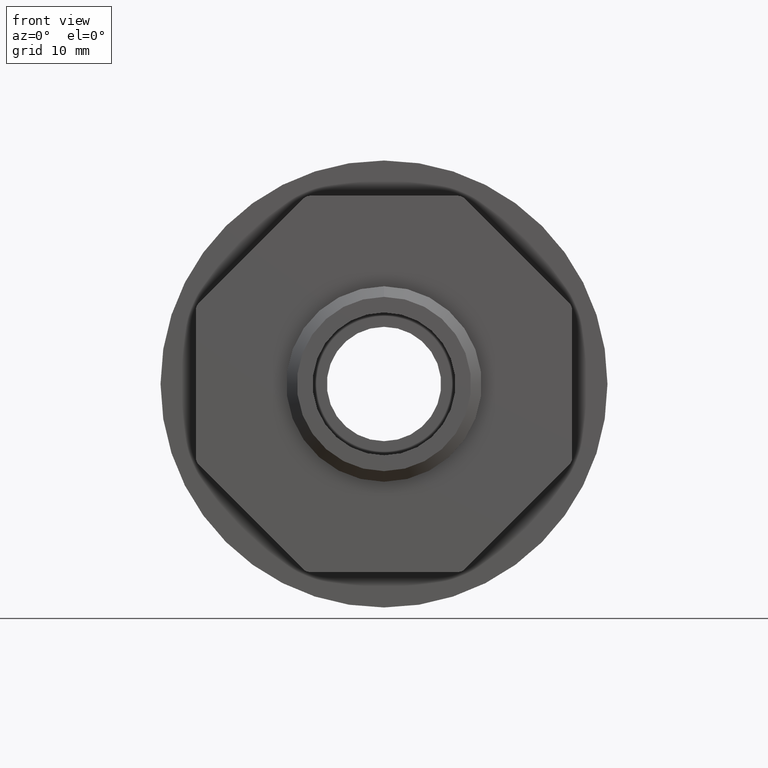
[diagram: clean part render]
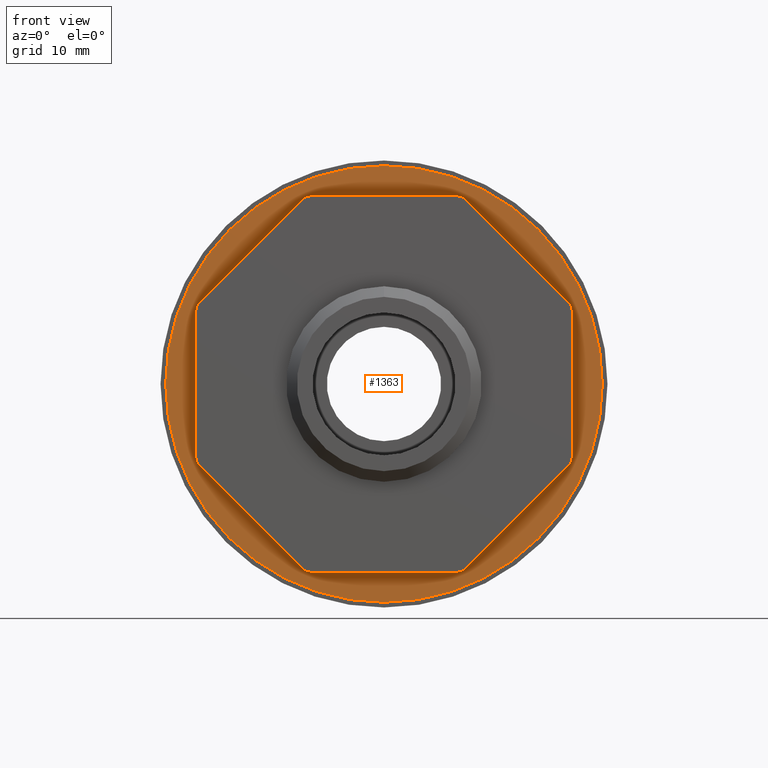
[diagram: same view with one face highlighted and labeled with its STEP entity id]
A machine part, front view. The second image highlights one B-rep face of the part: STEP entity #1363.
In plain terms, the highlighted planar face has unit normal (0, -1, 0).
Its self-contained STEP definition (entity closure, byte-faithful):
#983 = ORIENTED_EDGE ( 'NONE', *, *, #1273, .F. ) ;
#991 = ORIENTED_EDGE ( 'NONE', *, *, #1320, .F. ) ;
#1185 = EDGE_LOOP ( 'NONE', ( #991, #983 ) ) ;
#1226 = VERTEX_POINT ( 'NONE', #2716 ) ;
#1227 = VERTEX_POINT ( 'NONE', #2717 ) ;
#1273 = EDGE_CURVE ( 'NONE', #1227, #1226, #2852, .T. ) ;
#1320 = EDGE_CURVE ( 'NONE', #1226, #1227, #2821, .T. ) ;
#1352 = EDGE_CURVE ( 'NONE', #1360, #1353, #2841, .T. ) ;
#1353 = VERTEX_POINT ( 'NONE', #2837 ) ;
#1355 = EDGE_CURVE ( 'NONE', #1360, #1436, #2836, .T. ) ;
#1358 = ORIENTED_EDGE ( 'NONE', *, *, #1355, .F. ) ;
#1360 = VERTEX_POINT ( 'NONE', #2779 ) ;
#1361 = VERTEX_POINT ( 'NONE', #2778 ) ;
#1363 = ADVANCED_FACE ( 'NONE', ( #2777, #2776 ), #2775, .T. ) ;
#1402 = EDGE_LOOP ( 'NONE', ( #1408, #1432, #1358, #1670, #1580, #1687, #1688, #1610, #1608, #1553, #1556, #1607, #1659, #1597, #1595, #1645 ) ) ;
#1404 = VERTEX_POINT ( 'NONE', #2774 ) ;
#1408 = ORIENTED_EDGE ( 'NONE', *, *, #1409, .F. ) ;
#1409 = EDGE_CURVE ( 'NONE', #1404, #1410, #2817, .T. ) ;
#1410 = VERTEX_POINT ( 'NONE', #2813 ) ;
#1432 = ORIENTED_EDGE ( 'NONE', *, *, #1434, .T. ) ;
#1434 = EDGE_CURVE ( 'NONE', #1404, #1436, #2812, .T. ) ;
#1436 = VERTEX_POINT ( 'NONE', #2849 ) ;
#1548 = VERTEX_POINT ( 'NONE', #2740 ) ;
#1550 = EDGE_CURVE ( 'NONE', #1624, #1548, #2738, .T. ) ;
#1552 = EDGE_CURVE ( 'NONE', #1609, #1548, #2739, .T. ) ;
#1553 = ORIENTED_EDGE ( 'NONE', *, *, #1554, .T. ) ;
#1554 = EDGE_CURVE ( 'NONE', #1609, #1555, #2787, .T. ) ;
#1555 = VERTEX_POINT ( 'NONE', #2782 ) ;
#1556 = ORIENTED_EDGE ( 'NONE', *, *, #1602, .F. ) ;
#1580 = ORIENTED_EDGE ( 'NONE', *, *, #1586, .F. ) ;
#1581 = VERTEX_POINT ( 'NONE', #2781 ) ;
#1583 = EDGE_CURVE ( 'NONE', #1581, #1361, #2922, .T. ) ;
#1586 = EDGE_CURVE ( 'NONE', #1581, #1353, #2956, .T. ) ;
#1595 = ORIENTED_EDGE ( 'NONE', *, *, #1596, .F. ) ;
#1596 = EDGE_CURVE ( 'NONE', #1730, #1600, #2936, .T. ) ;
#1597 = ORIENTED_EDGE ( 'NONE', *, *, #1655, .T. ) ;
#1598 = VERTEX_POINT ( 'NONE', #2915 ) ;
#1600 = VERTEX_POINT ( 'NONE', #2920 ) ;
#1602 = EDGE_CURVE ( 'NONE', #1604, #1555, #2961, .T. ) ;
#1604 = VERTEX_POINT ( 'NONE', #2962 ) ;
#1607 = ORIENTED_EDGE ( 'NONE', *, *, #1662, .T. ) ;
#1608 = ORIENTED_EDGE ( 'NONE', *, *, #1552, .F. ) ;
#1609 = VERTEX_POINT ( 'NONE', #2945 ) ;
#1610 = ORIENTED_EDGE ( 'NONE', *, *, #1550, .T. ) ;
#1624 = VERTEX_POINT ( 'NONE', #2995 ) ;
#1644 = EDGE_CURVE ( 'NONE', #1624, #1361, #2959, .T. ) ;
#1645 = ORIENTED_EDGE ( 'NONE', *, *, #1646, .T. ) ;
#1646 = EDGE_CURVE ( 'NONE', #1730, #1410, #2960, .T. ) ;
#1654 = EDGE_CURVE ( 'NONE', #1598, #1657, #2996, .T. ) ;
#1655 = EDGE_CURVE ( 'NONE', #1598, #1600, #2927, .T. ) ;
#1657 = VERTEX_POINT ( 'NONE', #2923 ) ;
#1659 = ORIENTED_EDGE ( 'NONE', *, *, #1654, .F. ) ;
#1662 = EDGE_CURVE ( 'NONE', #1604, #1657, #2892, .T. ) ;
#1670 = ORIENTED_EDGE ( 'NONE', *, *, #1352, .T. ) ;
#1687 = ORIENTED_EDGE ( 'NONE', *, *, #1583, .T. ) ;
#1688 = ORIENTED_EDGE ( 'NONE', *, *, #1644, .F. ) ;
#1730 = VERTEX_POINT ( 'NONE', #2905 ) ;
#2716 = CARTESIAN_POINT ( 'NONE',  ( 0.0000000000000000000, 0.5100000000000000100, 1.049999999999999800 ) ) ;
#2717 = CARTESIAN_POINT ( 'NONE',  ( 1.285879139104720500E-016, 0.5100000000000000100, -1.049999999999999800 ) ) ;
#2734 = DIRECTION ( 'NONE',  ( 0.0000000000000000000, 0.0000000000000000000, -1.000000000000000000 ) ) ;
#2735 = DIRECTION ( 'NONE',  ( -0.0000000000000000000, 1.000000000000000000, -0.0000000000000000000 ) ) ;
#2736 = CARTESIAN_POINT ( 'NONE',  ( -0.8549999999999996500, 0.5100000000000000100, -0.3541525958289963900 ) ) ;
#2737 = AXIS2_PLACEMENT_3D ( 'NONE', #2736, #2735, #2734 ) ;
#2738 = CIRCLE ( 'NONE', #2737, 0.05000000000000001000 ) ;
#2739 = LINE ( 'NONE', #2790, #2789 ) ;
#2740 = CARTESIAN_POINT ( 'NONE',  ( -0.9049999999999995800, 0.5100000000000000100, -0.3541525958289963900 ) ) ;
#2770 = DIRECTION ( 'NONE',  ( 0.0000000000000000000, -0.0000000000000000000, -1.000000000000000000 ) ) ;
#2771 = DIRECTION ( 'NONE',  ( 0.0000000000000000000, -1.000000000000000000, 0.0000000000000000000 ) ) ;
#2772 = CARTESIAN_POINT ( 'NONE',  ( 0.0000000000000000000, 0.5100000000000000100, 0.0000000000000000000 ) ) ;
#2773 = AXIS2_PLACEMENT_3D ( 'NONE', #2772, #2771, #2770 ) ;
#2774 = CARTESIAN_POINT ( 'NONE',  ( 0.9049999999999998000, 0.5100000000000000100, -0.3541525958289963900 ) ) ;
#2775 = PLANE ( 'NONE',  #2773 ) ;
#2776 = FACE_BOUND ( 'NONE', #1402, .T. ) ;
#2777 = FACE_OUTER_BOUND ( 'NONE', #1185, .T. ) ;
#2778 = CARTESIAN_POINT ( 'NONE',  ( -0.3895079348883229700, 0.5100000000000000100, -0.8903553390593274000 ) ) ;
#2779 = CARTESIAN_POINT ( 'NONE',  ( 0.3895079348883237500, 0.5100000000000000100, -0.8903553390593274000 ) ) ;
#2780 = DIRECTION ( 'NONE',  ( 0.7071067811865473500, 0.0000000000000000000, 0.7071067811865476800 ) ) ;
#2781 = CARTESIAN_POINT ( 'NONE',  ( -0.3541525958289956600, 0.5100000000000000100, -0.9050000000000000300 ) ) ;
#2782 = CARTESIAN_POINT ( 'NONE',  ( -0.8903553390593271800, 0.5100000000000000100, 0.3895079348883231400 ) ) ;
#2783 = DIRECTION ( 'NONE',  ( -2.731847993664262800E-015, 0.0000000000000000000, -1.000000000000000000 ) ) ;
#2784 = DIRECTION ( 'NONE',  ( -0.0000000000000000000, 1.000000000000000000, -0.0000000000000000000 ) ) ;
#2785 = CARTESIAN_POINT ( 'NONE',  ( -0.8549999999999997600, 0.5100000000000000100, 0.3541525958289958900 ) ) ;
#2786 = AXIS2_PLACEMENT_3D ( 'NONE', #2785, #2784, #2783 ) ;
#2787 = CIRCLE ( 'NONE', #2786, 0.05000000000000001000 ) ;
#2788 = DIRECTION ( 'NONE',  ( 1.821896264266850500E-016, 0.0000000000000000000, -1.000000000000000000 ) ) ;
#2789 = VECTOR ( 'NONE', #2788, 39.37007874015748100 ) ;
#2790 = CARTESIAN_POINT ( 'NONE',  ( -0.9049999999999998000, 0.5100000000000000100, 0.3748632739476505100 ) ) ;
#2793 = CARTESIAN_POINT ( 'NONE',  ( 0.0000000000000000000, 0.5100000000000000100, 0.0000000000000000000 ) ) ;
#2796 = DIRECTION ( 'NONE',  ( 0.0000000000000000000, 0.0000000000000000000, -1.000000000000000000 ) ) ;
#2797 = DIRECTION ( 'NONE',  ( -0.0000000000000000000, 1.000000000000000000, -0.0000000000000000000 ) ) ;
#2798 = AXIS2_PLACEMENT_3D ( 'NONE', #2863, #2797, #2796 ) ;
#2809 = DIRECTION ( 'NONE',  ( -0.0000000000000000000, 1.000000000000000000, -0.0000000000000000000 ) ) ;
#2810 = CARTESIAN_POINT ( 'NONE',  ( 0.8549999999999997600, 0.5100000000000000100, -0.3541525958289963900 ) ) ;
#2811 = AXIS2_PLACEMENT_3D ( 'NONE', #2810, #2809, #2850 ) ;
#2812 = CIRCLE ( 'NONE', #2811, 0.05000000000000001000 ) ;
#2813 = CARTESIAN_POINT ( 'NONE',  ( 0.9049999999999998000, 0.5100000000000000100, 0.3541525958289966600 ) ) ;
#2814 = DIRECTION ( 'NONE',  ( 0.0000000000000000000, 0.0000000000000000000, 1.000000000000000000 ) ) ;
#2815 = VECTOR ( 'NONE', #2814, 39.37007874015748100 ) ;
#2816 = CARTESIAN_POINT ( 'NONE',  ( 0.9049999999999998000, 0.5100000000000000100, -0.3748632739476510700 ) ) ;
#2817 = LINE ( 'NONE', #2816, #2815 ) ;
#2818 = DIRECTION ( 'NONE',  ( 0.0000000000000000000, 0.0000000000000000000, -1.000000000000000000 ) ) ;
#2819 = DIRECTION ( 'NONE',  ( -0.0000000000000000000, 1.000000000000000000, -0.0000000000000000000 ) ) ;
#2820 = AXIS2_PLACEMENT_3D ( 'NONE', #2793, #2819, #2818 ) ;
#2821 = CIRCLE ( 'NONE', #2820, 1.049999999999999800 ) ;
#2834 = VECTOR ( 'NONE', #2780, 39.37007874015748100 ) ;
#2835 = CARTESIAN_POINT ( 'NONE',  ( 0.3748632739476510700, 0.5100000000000000100, -0.9050000000000000300 ) ) ;
#2836 = LINE ( 'NONE', #2835, #2834 ) ;
#2837 = CARTESIAN_POINT ( 'NONE',  ( 0.3541525958289963300, 0.5100000000000000100, -0.9050000000000000300 ) ) ;
#2838 = DIRECTION ( 'NONE',  ( 0.0000000000000000000, 0.0000000000000000000, -1.000000000000000000 ) ) ;
#2839 = DIRECTION ( 'NONE',  ( -0.0000000000000000000, 1.000000000000000000, -0.0000000000000000000 ) ) ;
#2840 = AXIS2_PLACEMENT_3D ( 'NONE', #2867, #2839, #2838 ) ;
#2841 = CIRCLE ( 'NONE', #2840, 0.05000000000000001000 ) ;
#2849 = CARTESIAN_POINT ( 'NONE',  ( 0.8903553390593271800, 0.5100000000000000100, -0.3895079348883236400 ) ) ;
#2850 = DIRECTION ( 'NONE',  ( -5.463695987328525600E-015, 0.0000000000000000000, -1.000000000000000000 ) ) ;
#2852 = CIRCLE ( 'NONE', #2798, 1.049999999999999800 ) ;
#2863 = CARTESIAN_POINT ( 'NONE',  ( 0.0000000000000000000, 0.5100000000000000100, 0.0000000000000000000 ) ) ;
#2867 = CARTESIAN_POINT ( 'NONE',  ( 0.3541525958289963300, 0.5100000000000000100, -0.8549999999999999800 ) ) ;
#2888 = DIRECTION ( 'NONE',  ( -4.097771990496393800E-015, 0.0000000000000000000, -1.000000000000000000 ) ) ;
#2889 = DIRECTION ( 'NONE',  ( -0.0000000000000000000, 1.000000000000000000, -0.0000000000000000000 ) ) ;
#2890 = CARTESIAN_POINT ( 'NONE',  ( -0.3541525958289962700, 0.5100000000000000100, 0.8549999999999997600 ) ) ;
#2891 = AXIS2_PLACEMENT_3D ( 'NONE', #2890, #2889, #2888 ) ;
#2892 = CIRCLE ( 'NONE', #2891, 0.05000000000000001000 ) ;
#2894 = AXIS2_PLACEMENT_3D ( 'NONE', #2957, #2930, #2914 ) ;
#2905 = CARTESIAN_POINT ( 'NONE',  ( 0.8903553390593270700, 0.5100000000000000100, 0.3895079348883240800 ) ) ;
#2906 = DIRECTION ( 'NONE',  ( 0.7071067811865477900, 0.0000000000000000000, -0.7071067811865472400 ) ) ;
#2907 = VECTOR ( 'NONE', #2906, 39.37007874015748100 ) ;
#2908 = CARTESIAN_POINT ( 'NONE',  ( -0.9049999999999995800, 0.5100000000000000100, -0.3748632739476511200 ) ) ;
#2909 = DIRECTION ( 'NONE',  ( 0.0000000000000000000, 0.0000000000000000000, -1.000000000000000000 ) ) ;
#2910 = DIRECTION ( 'NONE',  ( -0.0000000000000000000, 1.000000000000000000, -0.0000000000000000000 ) ) ;
#2911 = CARTESIAN_POINT ( 'NONE',  ( 0.8549999999999997600, 0.5100000000000000100, 0.3541525958289966600 ) ) ;
#2913 = VECTOR ( 'NONE', #2947, 39.37007874015748900 ) ;
#2914 = DIRECTION ( 'NONE',  ( 0.0000000000000000000, 0.0000000000000000000, -1.000000000000000000 ) ) ;
#2915 = CARTESIAN_POINT ( 'NONE',  ( 0.3541525958289961100, 0.5100000000000000100, 0.9050000000000000300 ) ) ;
#2920 = CARTESIAN_POINT ( 'NONE',  ( 0.3895079348883233000, 0.5100000000000000100, 0.8903553390593275100 ) ) ;
#2922 = CIRCLE ( 'NONE', #2894, 0.05000000000000001000 ) ;
#2923 = CARTESIAN_POINT ( 'NONE',  ( -0.3541525958289960000, 0.5100000000000000100, 0.9049999999999998000 ) ) ;
#2924 = DIRECTION ( 'NONE',  ( -4.097771990496393800E-015, 0.0000000000000000000, -1.000000000000000000 ) ) ;
#2925 = DIRECTION ( 'NONE',  ( -0.0000000000000000000, 1.000000000000000000, -0.0000000000000000000 ) ) ;
#2926 = AXIS2_PLACEMENT_3D ( 'NONE', #3000, #2925, #2924 ) ;
#2927 = CIRCLE ( 'NONE', #2926, 0.05000000000000001000 ) ;
#2930 = DIRECTION ( 'NONE',  ( -0.0000000000000000000, 1.000000000000000000, -0.0000000000000000000 ) ) ;
#2933 = DIRECTION ( 'NONE',  ( 1.000000000000000000, 0.0000000000000000000, 0.0000000000000000000 ) ) ;
#2934 = VECTOR ( 'NONE', #2933, 39.37007874015748100 ) ;
#2936 = LINE ( 'NONE', #2944, #2913 ) ;
#2944 = CARTESIAN_POINT ( 'NONE',  ( 0.9049999999999998000, 0.5100000000000000100, 0.3748632739476514000 ) ) ;
#2945 = CARTESIAN_POINT ( 'NONE',  ( -0.9049999999999998000, 0.5100000000000000100, 0.3541525958289958900 ) ) ;
#2946 = DIRECTION ( 'NONE',  ( -0.7071067811865472400, 0.0000000000000000000, -0.7071067811865477900 ) ) ;
#2947 = DIRECTION ( 'NONE',  ( -0.7071067811865476800, 0.0000000000000000000, 0.7071067811865472400 ) ) ;
#2953 = AXIS2_PLACEMENT_3D ( 'NONE', #2911, #2910, #2909 ) ;
#2956 = LINE ( 'NONE', #2958, #2934 ) ;
#2957 = CARTESIAN_POINT ( 'NONE',  ( -0.3541525958289956600, 0.5100000000000000100, -0.8549999999999999800 ) ) ;
#2958 = CARTESIAN_POINT ( 'NONE',  ( -0.3748632739476502900, 0.5100000000000000100, -0.9050000000000000300 ) ) ;
#2959 = LINE ( 'NONE', #2908, #2907 ) ;
#2960 = CIRCLE ( 'NONE', #2953, 0.05000000000000001000 ) ;
#2961 = LINE ( 'NONE', #2994, #2993 ) ;
#2962 = CARTESIAN_POINT ( 'NONE',  ( -0.3895079348883235800, 0.5100000000000000100, 0.8903553390593270700 ) ) ;
#2993 = VECTOR ( 'NONE', #2946, 39.37007874015748100 ) ;
#2994 = CARTESIAN_POINT ( 'NONE',  ( -0.3748632739476509000, 0.5100000000000000100, 0.9049999999999998000 ) ) ;
#2995 = CARTESIAN_POINT ( 'NONE',  ( -0.8903553390593269600, 0.5100000000000000100, -0.3895079348883238000 ) ) ;
#2996 = LINE ( 'NONE', #3003, #3002 ) ;
#3000 = CARTESIAN_POINT ( 'NONE',  ( 0.3541525958289961100, 0.5100000000000000100, 0.8549999999999999800 ) ) ;
#3001 = DIRECTION ( 'NONE',  ( -1.000000000000000000, 0.0000000000000000000, -3.643792528533701000E-016 ) ) ;
#3002 = VECTOR ( 'NONE', #3001, 39.37007874015748100 ) ;
#3003 = CARTESIAN_POINT ( 'NONE',  ( 0.3748632739476507900, 0.5100000000000000100, 0.9050000000000000300 ) ) ;